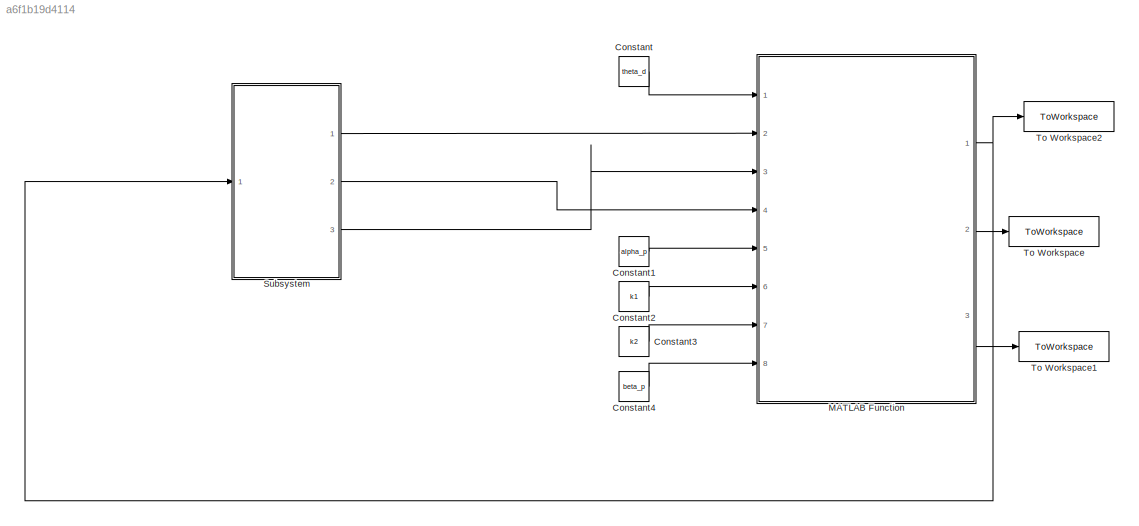
MODEL slx_a6f1b19d4114
KIND model
CONFIG AbsTol = auto
CONFIG EnableMultiTasking = off
CONFIG FixedStep = auto
CONFIG MaxStep = auto
CONFIG MinStep = auto
CONFIG RelTol = 1e-3
CONFIG SampleTimeConstraint = Unconstrained
CONFIG SolverName = VariableStepAuto
CONFIG StartTime = 0.0
CONFIG StopTime = tf
BLOCK [Constant] Constant
  Value = theta_d
BLOCK [Constant] Constant1
  Value = alpha_p
BLOCK [Constant] Constant2
  Value = k1
BLOCK [Constant] Constant3
  Value = k2
BLOCK [Constant] Constant4
  Value = beta_p
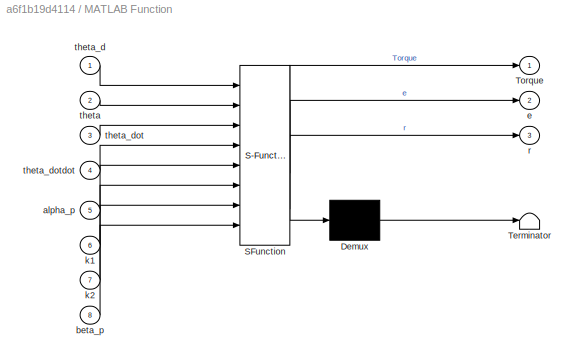
BLOCK [SubSystem] MATLAB Function
  ErrorFcn = Stateflow.Translate.translate
  PermitHierarchicalResolution = ExplicitOnly
  Ports = [8, 3]
  RequestExecContextInheritance = off
  SFBlockType = MATLAB Function
  TreatAsAtomicUnit = on
BLOCK [Demux] MATLAB Function/ Demux 
  Outputs = 1
  Ports = [1, 1]
BLOCK [S-Function] MATLAB Function/ SFunction 
  EnableBusSupport = on
  FunctionName = sf_sfun
  PortCounts = [8 4]
  Ports = [8, 4]
  SFcnIsStateOwnerBlock = off
  SFunctionDeploymentMode = off
  Tag = Stateflow S-Function 1
BLOCK [Terminator] MATLAB Function/ Terminator 
BLOCK [Outport] MATLAB Function/Torque
BLOCK [Inport] MATLAB Function/alpha_p
  Port = 5
BLOCK [Inport] MATLAB Function/beta_p
  Port = 8
BLOCK [Outport] MATLAB Function/e
  Port = 2
BLOCK [Inport] MATLAB Function/k1
  Port = 6
BLOCK [Inport] MATLAB Function/k2
  Port = 7
BLOCK [Outport] MATLAB Function/r
  Port = 3
BLOCK [Inport] MATLAB Function/theta
  Port = 2
BLOCK [Inport] MATLAB Function/theta_d
BLOCK [Inport] MATLAB Function/theta_dot
  Port = 3
BLOCK [Inport] MATLAB Function/theta_dotdot
  Port = 4
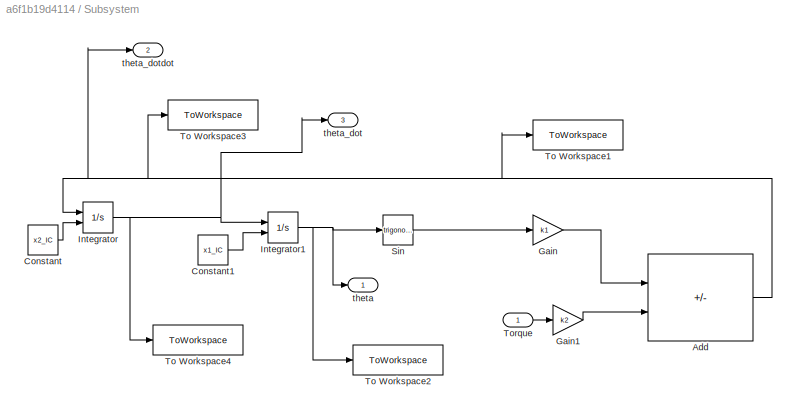
BLOCK [SubSystem] Subsystem
  Ports = [1, 3]
  RequestExecContextInheritance = off
BLOCK [Sum] Subsystem/Add
  IconShape = rectangular
  Inputs = +-
  Ports = [2, 1]
BLOCK [Constant] Subsystem/Constant
  Value = x2_IC
BLOCK [Constant] Subsystem/Constant1
  Value = x1_IC
BLOCK [Gain] Subsystem/Gain
  Gain = k1
BLOCK [Gain] Subsystem/Gain1
  Gain = k2
BLOCK [Integrator] Subsystem/Integrator
  InitialConditionSource = external
  Ports = [2, 1]
BLOCK [Integrator] Subsystem/Integrator1
  InitialConditionSource = external
  Ports = [2, 1]
BLOCK [Trigonometry] Subsystem/Sin
  Ports = [1, 1]
BLOCK [ToWorkspace] Subsystem/To Workspace1
  FixptAsFi = on
  MaxDataPoints = inf
  Ports = [1]
  SampleTime = -1
  SaveFormat = Timeseries
  VariableName = x1
BLOCK [ToWorkspace] Subsystem/To Workspace2
  FixptAsFi = on
  MaxDataPoints = inf
  Ports = [1]
  SampleTime = -1
  SaveFormat = Timeseries
  VariableName = theta
BLOCK [ToWorkspace] Subsystem/To Workspace3
  FixptAsFi = on
  MaxDataPoints = inf
  Ports = [1]
  SampleTime = -1
  SaveFormat = Timeseries
  VariableName = theta_DD
BLOCK [ToWorkspace] Subsystem/To Workspace4
  FixptAsFi = on
  MaxDataPoints = inf
  Ports = [1]
  SampleTime = -1
  SaveFormat = Timeseries
  VariableName = x2
BLOCK [Inport] Subsystem/Torque
BLOCK [Outport] Subsystem/theta
BLOCK [Outport] Subsystem/theta_dot
  Port = 3
BLOCK [Outport] Subsystem/theta_dotdot
  Port = 2
BLOCK [ToWorkspace] To Workspace
  FixptAsFi = on
  MaxDataPoints = inf
  Ports = [1]
  SampleTime = -1
  SaveFormat = Timeseries
  VariableName = e
BLOCK [ToWorkspace] To Workspace1
  FixptAsFi = on
  MaxDataPoints = inf
  Ports = [1]
  SampleTime = -1
  SaveFormat = Timeseries
  VariableName = r
BLOCK [ToWorkspace] To Workspace2
  FixptAsFi = on
  MaxDataPoints = inf
  Ports = [1]
  SampleTime = -1
  SaveFormat = Timeseries
  VariableName = torque
LINE Constant1:1 -> MATLAB Function:5
LINE Constant2:1 -> MATLAB Function:6
LINE Constant3:1 -> MATLAB Function:7
LINE Constant4:1 -> MATLAB Function:8
LINE Constant:1 -> MATLAB Function:1
NET MATLAB Function:1 -> Subsystem:1, To Workspace2:1
LINE MATLAB Function:2 -> To Workspace:1
LINE MATLAB Function:3 -> To Workspace1:1
NET Subsystem/Add:1 -> Subsystem/Integrator:1, Subsystem/To Workspace1:1, Subsystem/To Workspace3:1, Subsystem/theta_dotdot:1
LINE Subsystem/Constant1:1 -> Subsystem/Integrator1:2
LINE Subsystem/Constant:1 -> Subsystem/Integrator:2
LINE Subsystem/Gain1:1 -> Subsystem/Add:2
LINE Subsystem/Gain:1 -> Subsystem/Add:1
NET Subsystem/Integrator1:1 -> Subsystem/Sin:1, Subsystem/To Workspace2:1, Subsystem/theta:1
NET Subsystem/Integrator:1 -> Subsystem/Integrator1:1, Subsystem/To Workspace4:1, Subsystem/theta_dot:1
LINE Subsystem/Sin:1 -> Subsystem/Gain:1
LINE Subsystem/Torque:1 -> Subsystem/Gain1:1
LINE Subsystem:1 -> MATLAB Function:2
LINE Subsystem:2 -> MATLAB Function:4
LINE Subsystem:3 -> MATLAB Function:3
note: NET lines group one-source signal fan-out (src -> all destinations, sorted); 1:1 wires keep LINE
CHART MATLAB Function states=1 transitions=1
  STATE_LABEL 'eML_blk_kernel()'
  STATE_LABEL 'SCRIPT:\nfunction [Torque, e, r]  = fcn(theta_d, theta, theta_dot, theta_dotdot, alpha_p, k1, k2, beta_p )\ne = theta_d - theta;\ne_dot = - theta_dot;\ne_dotdot = - theta_dotdot;\nr = e_dot + alpha_p*e;\nr_dot = e_dotdot + alpha_p*e_dot;\nTorque = (k1/k2)*sin(theta) - (alpha_p/k2)*e_dot - e - beta_p*r;\n\n\n'
CHART  states=0 transitions=0
